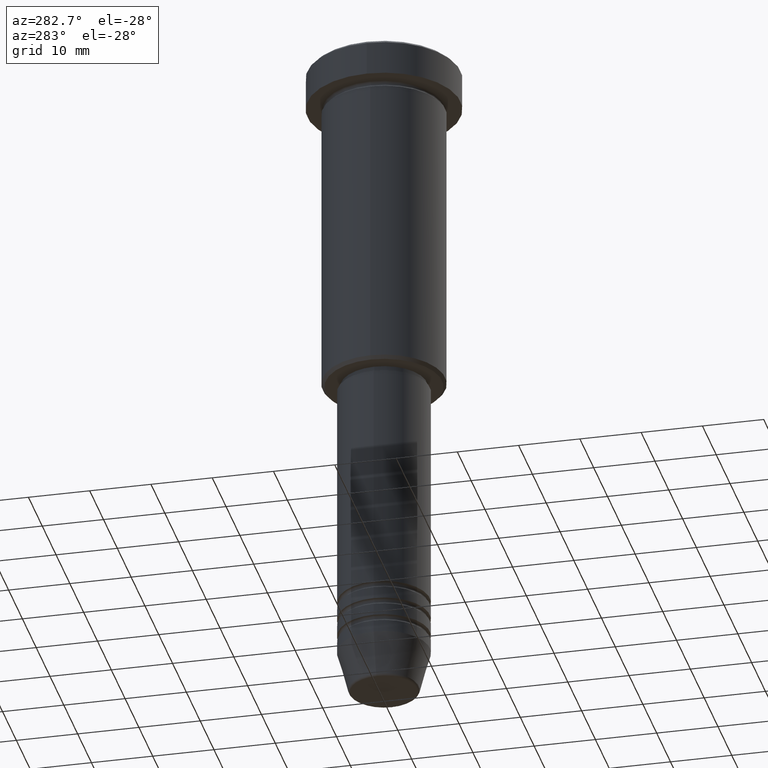
[diagram: clean part render]
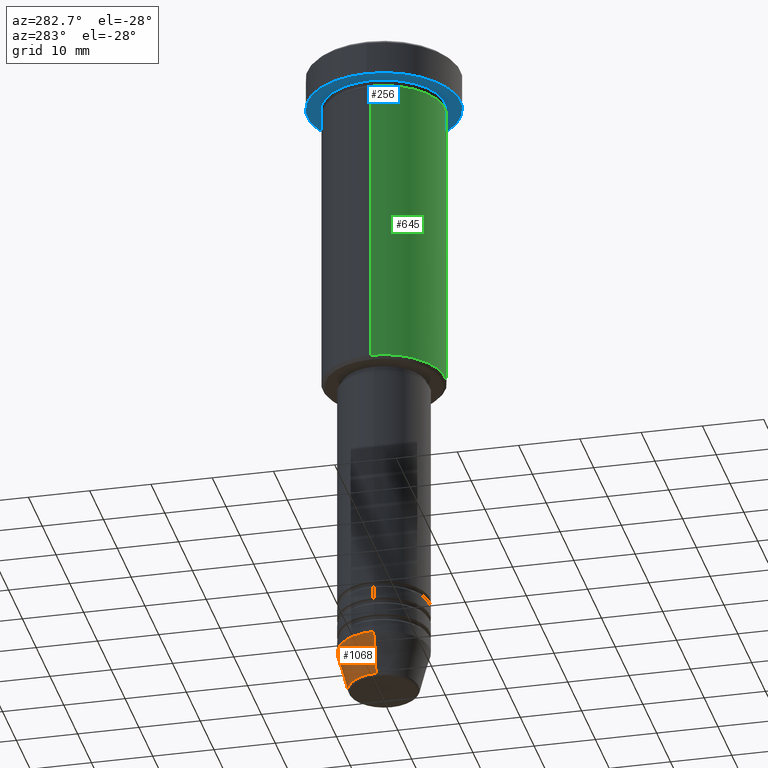
[diagram: same view with three faces highlighted in distinct colors, each labeled with its STEP entity id]
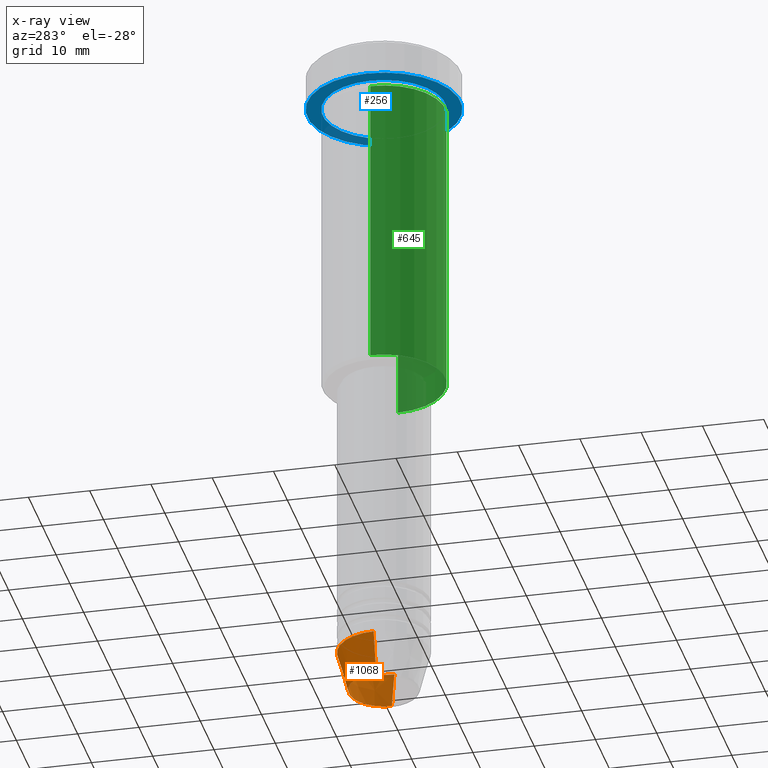
[diagram: x-ray of the same camera — body ghosted, the three highlighted faces saturated]
A machine part, auxiliary view with three faces highlighted in distinct colors.
The next image is the same camera in x-ray (body ghosted, the three faces saturated) — at least one of them is partly hidden behind the body in this view.
Their STEP definitions:

[orange] entity #1068 — the highlighted conical surface has half-angle 15 deg.
#20 = DIRECTION ( 'NONE',  ( -0.2588190451025213501, 3.169619151431772337E-17, 0.9659258262890680902 ) ) ;
#44 = DIRECTION ( 'NONE',  ( -0.000000000000000000, -0.000000000000000000, 1.000000000000000000 ) ) ;
#50 = AXIS2_PLACEMENT_3D ( 'NONE', #89, #1089, #1072 ) ;
#73 = CONICAL_SURFACE ( 'NONE', #50, 7.500000000000000000, 0.2617993877991500740 ) ;
#89 = CARTESIAN_POINT ( 'NONE',  ( 0.000000000000000000, 0.000000000000000000, -104.0000000000000142 ) ) ;
#134 = CARTESIAN_POINT ( 'NONE',  ( 0.000000000000000000, 0.000000000000000000, -104.0000000000000142 ) ) ;
#138 = EDGE_CURVE ( 'NONE', #368, #181, #266, .T. ) ;
#147 = DIRECTION ( 'NONE',  ( -0.000000000000000000, -0.000000000000000000, 1.000000000000000000 ) ) ;
#155 = DIRECTION ( 'NONE',  ( 1.000000000000000000, 0.000000000000000000, 0.000000000000000000 ) ) ;
#174 = CARTESIAN_POINT ( 'NONE',  ( 7.500000000000000000, 0.000000000000000000, -104.0000000000000142 ) ) ;
#181 = VERTEX_POINT ( 'NONE', #445 ) ;
#184 = FACE_OUTER_BOUND ( 'NONE', #893, .T. ) ;
#205 = VECTOR ( 'NONE', #536, 1000.000000000000000 ) ;
#221 = ORIENTED_EDGE ( 'NONE', *, *, #610, .T. ) ;
#266 = LINE ( 'NONE', #174, #205 ) ;
#301 = CARTESIAN_POINT ( 'NONE',  ( -7.500000000000000000, 9.184850993605147944E-16, -104.0000000000000142 ) ) ;
#340 = CIRCLE ( 'NONE', #1077, 7.500000000000000000 ) ;
#368 = VERTEX_POINT ( 'NONE', #1092 ) ;
#387 = ORIENTED_EDGE ( 'NONE', *, *, #138, .F. ) ;
#417 = DIRECTION ( 'NONE',  ( 1.000000000000000000, 0.000000000000000000, 0.000000000000000000 ) ) ;
#445 = CARTESIAN_POINT ( 'NONE',  ( 7.500000000000000000, 0.000000000000000000, -104.0000000000000142 ) ) ;
#498 = ORIENTED_EDGE ( 'NONE', *, *, #965, .F. ) ;
#517 = ORIENTED_EDGE ( 'NONE', *, *, #841, .T. ) ;
#536 = DIRECTION ( 'NONE',  ( 0.2588190451025213501, 0.000000000000000000, 0.9659258262890680902 ) ) ;
#538 = VERTEX_POINT ( 'NONE', #301 ) ;
#556 = CARTESIAN_POINT ( 'NONE',  ( -5.723655072137193933, 8.097153428560737887E-16, -110.6294095225512706 ) ) ;
#573 = LINE ( 'NONE', #844, #854 ) ;
#610 = EDGE_CURVE ( 'NONE', #679, #538, #573, .T. ) ;
#679 = VERTEX_POINT ( 'NONE', #556 ) ;
#815 = CIRCLE ( 'NONE', #1155, 5.723655072137193933 ) ;
#841 = EDGE_CURVE ( 'NONE', #368, #679, #815, .T. ) ;
#844 = CARTESIAN_POINT ( 'NONE',  ( -7.500000000000000000, 9.184850993605147944E-16, -104.0000000000000142 ) ) ;
#854 = VECTOR ( 'NONE', #20, 1000.000000000000000 ) ;
#864 = CARTESIAN_POINT ( 'NONE',  ( 0.000000000000000000, 0.000000000000000000, -110.6294095225512706 ) ) ;
#893 = EDGE_LOOP ( 'NONE', ( #517, #221, #498, #387 ) ) ;
#965 = EDGE_CURVE ( 'NONE', #181, #538, #340, .T. ) ;
#1068 = ADVANCED_FACE ( 'NONE', ( #184 ), #73, .T. ) ;
#1072 = DIRECTION ( 'NONE',  ( 1.000000000000000000, 0.000000000000000000, 0.000000000000000000 ) ) ;
#1077 = AXIS2_PLACEMENT_3D ( 'NONE', #134, #44, #417 ) ;
#1089 = DIRECTION ( 'NONE',  ( -0.000000000000000000, -0.000000000000000000, 1.000000000000000000 ) ) ;
#1092 = CARTESIAN_POINT ( 'NONE',  ( 5.723655072137193933, 0.000000000000000000, -110.6294095225512706 ) ) ;
#1155 = AXIS2_PLACEMENT_3D ( 'NONE', #864, #147, #155 ) ;

[blue] entity #256 — the highlighted planar face has unit normal (0, 0, -1).
#40 = DIRECTION ( 'NONE',  ( 1.000000000000000000, 0.000000000000000000, 0.000000000000000000 ) ) ;
#46 = DIRECTION ( 'NONE',  ( 1.000000000000000000, 0.000000000000000000, 0.000000000000000000 ) ) ;
#63 = FACE_OUTER_BOUND ( 'NONE', #1159, .T. ) ;
#148 = AXIS2_PLACEMENT_3D ( 'NONE', #429, #518, #1057 ) ;
#152 = AXIS2_PLACEMENT_3D ( 'NONE', #593, #409, #958 ) ;
#166 = CARTESIAN_POINT ( 'NONE',  ( 10.00000000000000000, 1.224646799147353256E-15, -5.999999999999996447 ) ) ;
#203 = CIRCLE ( 'NONE', #148, 10.00000000000000000 ) ;
#239 = VERTEX_POINT ( 'NONE', #166 ) ;
#256 = ADVANCED_FACE ( 'NONE', ( #1170, #63 ), #975, .T. ) ;
#290 = EDGE_LOOP ( 'NONE', ( #410, #521 ) ) ;
#383 = EDGE_CURVE ( 'NONE', #862, #515, #1019, .T. ) ;
#409 = DIRECTION ( 'NONE',  ( -0.000000000000000000, -0.000000000000000000, 1.000000000000000000 ) ) ;
#410 = ORIENTED_EDGE ( 'NONE', *, *, #829, .T. ) ;
#422 = CARTESIAN_POINT ( 'NONE',  ( -12.50000000000000000, 1.530808498934191521E-15, -5.999999999999996447 ) ) ;
#429 = CARTESIAN_POINT ( 'NONE',  ( 0.000000000000000000, 0.000000000000000000, -5.999999999999996447 ) ) ;
#513 = AXIS2_PLACEMENT_3D ( 'NONE', #970, #625, #1066 ) ;
#515 = VERTEX_POINT ( 'NONE', #1027 ) ;
#518 = DIRECTION ( 'NONE',  ( -0.000000000000000000, -0.000000000000000000, 1.000000000000000000 ) ) ;
#521 = ORIENTED_EDGE ( 'NONE', *, *, #558, .T. ) ;
#558 = EDGE_CURVE ( 'NONE', #239, #1150, #661, .T. ) ;
#576 = DIRECTION ( 'NONE',  ( -0.000000000000000000, -0.000000000000000000, 1.000000000000000000 ) ) ;
#580 = CIRCLE ( 'NONE', #961, 12.50000000000000000 ) ;
#593 = CARTESIAN_POINT ( 'NONE',  ( 0.000000000000000000, 0.000000000000000000, -5.999999999999996447 ) ) ;
#625 = DIRECTION ( 'NONE',  ( 0.000000000000000000, 0.000000000000000000, -1.000000000000000000 ) ) ;
#637 = ORIENTED_EDGE ( 'NONE', *, *, #859, .F. ) ;
#661 = CIRCLE ( 'NONE', #152, 10.00000000000000000 ) ;
#829 = EDGE_CURVE ( 'NONE', #1150, #239, #203, .T. ) ;
#855 = CARTESIAN_POINT ( 'NONE',  ( 0.000000000000000000, 0.000000000000000000, -5.999999999999996447 ) ) ;
#859 = EDGE_CURVE ( 'NONE', #515, #862, #580, .T. ) ;
#862 = VERTEX_POINT ( 'NONE', #422 ) ;
#880 = ORIENTED_EDGE ( 'NONE', *, *, #383, .F. ) ;
#888 = AXIS2_PLACEMENT_3D ( 'NONE', #940, #576, #40 ) ;
#912 = CARTESIAN_POINT ( 'NONE',  ( -10.00000000000000000, 0.000000000000000000, -5.999999999999996447 ) ) ;
#940 = CARTESIAN_POINT ( 'NONE',  ( 0.000000000000000000, 0.000000000000000000, -5.999999999999996447 ) ) ;
#958 = DIRECTION ( 'NONE',  ( -1.000000000000000000, 0.000000000000000000, 0.000000000000000000 ) ) ;
#961 = AXIS2_PLACEMENT_3D ( 'NONE', #855, #969, #46 ) ;
#969 = DIRECTION ( 'NONE',  ( -0.000000000000000000, -0.000000000000000000, 1.000000000000000000 ) ) ;
#970 = CARTESIAN_POINT ( 'NONE',  ( 0.000000000000000000, 12.50000000000000000, -5.999999999999996447 ) ) ;
#975 = PLANE ( 'NONE',  #513 ) ;
#1019 = CIRCLE ( 'NONE', #888, 12.50000000000000000 ) ;
#1027 = CARTESIAN_POINT ( 'NONE',  ( 12.50000000000000000, 0.000000000000000000, -5.999999999999996447 ) ) ;
#1057 = DIRECTION ( 'NONE',  ( -1.000000000000000000, 0.000000000000000000, 0.000000000000000000 ) ) ;
#1066 = DIRECTION ( 'NONE',  ( -1.000000000000000000, 0.000000000000000000, -0.000000000000000000 ) ) ;
#1150 = VERTEX_POINT ( 'NONE', #912 ) ;
#1159 = EDGE_LOOP ( 'NONE', ( #637, #880 ) ) ;
#1170 = FACE_BOUND ( 'NONE', #290, .T. ) ;

[green] entity #645 — the highlighted cylindrical surface (partial cylindrical patch) has radius 10 mm, axis along (-0, -0, 1).
#64 = FACE_OUTER_BOUND ( 'NONE', #325, .T. ) ;
#98 = DIRECTION ( 'NONE',  ( -0.000000000000000000, -0.000000000000000000, 1.000000000000000000 ) ) ;
#161 = ORIENTED_EDGE ( 'NONE', *, *, #1069, .T. ) ;
#247 = AXIS2_PLACEMENT_3D ( 'NONE', #669, #499, #781 ) ;
#264 = DIRECTION ( 'NONE',  ( -0.000000000000000000, -0.000000000000000000, 1.000000000000000000 ) ) ;
#308 = CARTESIAN_POINT ( 'NONE',  ( -10.00000000000000000, 1.224646799147353256E-15, -6.999999999999996447 ) ) ;
#313 = EDGE_CURVE ( 'NONE', #564, #447, #529, .T. ) ;
#325 = EDGE_LOOP ( 'NONE', ( #868, #161, #1178, #508 ) ) ;
#327 = VERTEX_POINT ( 'NONE', #470 ) ;
#447 = VERTEX_POINT ( 'NONE', #308 ) ;
#470 = CARTESIAN_POINT ( 'NONE',  ( 10.00000000000000000, 0.000000000000000000, -55.49999999999997868 ) ) ;
#499 = DIRECTION ( 'NONE',  ( -0.000000000000000000, -0.000000000000000000, 1.000000000000000000 ) ) ;
#505 = EDGE_CURVE ( 'NONE', #447, #752, #872, .T. ) ;
#508 = ORIENTED_EDGE ( 'NONE', *, *, #505, .F. ) ;
#529 = LINE ( 'NONE', #895, #1141 ) ;
#549 = DIRECTION ( 'NONE',  ( -1.000000000000000000, 0.000000000000000000, 0.000000000000000000 ) ) ;
#564 = VERTEX_POINT ( 'NONE', #757 ) ;
#565 = DIRECTION ( 'NONE',  ( 1.000000000000000000, 0.000000000000000000, 0.000000000000000000 ) ) ;
#645 = ADVANCED_FACE ( 'NONE', ( #64 ), #1166, .T. ) ;
#653 = LINE ( 'NONE', #1114, #1113 ) ;
#664 = DIRECTION ( 'NONE',  ( -0.000000000000000000, -0.000000000000000000, 1.000000000000000000 ) ) ;
#669 = CARTESIAN_POINT ( 'NONE',  ( 0.000000000000000000, 0.000000000000000000, -6.999999999999996447 ) ) ;
#697 = CIRCLE ( 'NONE', #1139, 10.00000000000000000 ) ;
#752 = VERTEX_POINT ( 'NONE', #1104 ) ;
#757 = CARTESIAN_POINT ( 'NONE',  ( -10.00000000000000000, 1.224646799147353256E-15, -55.49999999999997868 ) ) ;
#781 = DIRECTION ( 'NONE',  ( 1.000000000000000000, 0.000000000000000000, 0.000000000000000000 ) ) ;
#823 = EDGE_CURVE ( 'NONE', #327, #752, #653, .T. ) ;
#868 = ORIENTED_EDGE ( 'NONE', *, *, #313, .F. ) ;
#872 = CIRCLE ( 'NONE', #247, 10.00000000000000000 ) ;
#895 = CARTESIAN_POINT ( 'NONE',  ( -10.00000000000000000, 1.224646799147353256E-15, 0.000000000000000000 ) ) ;
#900 = CARTESIAN_POINT ( 'NONE',  ( 0.000000000000000000, 0.000000000000000000, -55.49999999999997868 ) ) ;
#1069 = EDGE_CURVE ( 'NONE', #564, #327, #697, .T. ) ;
#1076 = CARTESIAN_POINT ( 'NONE',  ( 0.000000000000000000, 0.000000000000000000, 0.000000000000000000 ) ) ;
#1104 = CARTESIAN_POINT ( 'NONE',  ( 10.00000000000000000, 0.000000000000000000, -6.999999999999996447 ) ) ;
#1112 = AXIS2_PLACEMENT_3D ( 'NONE', #1076, #264, #565 ) ;
#1113 = VECTOR ( 'NONE', #664, 1000.000000000000000 ) ;
#1114 = CARTESIAN_POINT ( 'NONE',  ( 10.00000000000000000, 0.000000000000000000, 0.000000000000000000 ) ) ;
#1139 = AXIS2_PLACEMENT_3D ( 'NONE', #900, #1180, #549 ) ;
#1141 = VECTOR ( 'NONE', #98, 1000.000000000000000 ) ;
#1166 = CYLINDRICAL_SURFACE ( 'NONE', #1112, 10.00000000000000000 ) ;
#1178 = ORIENTED_EDGE ( 'NONE', *, *, #823, .T. ) ;
#1180 = DIRECTION ( 'NONE',  ( -0.000000000000000000, -0.000000000000000000, 1.000000000000000000 ) ) ;